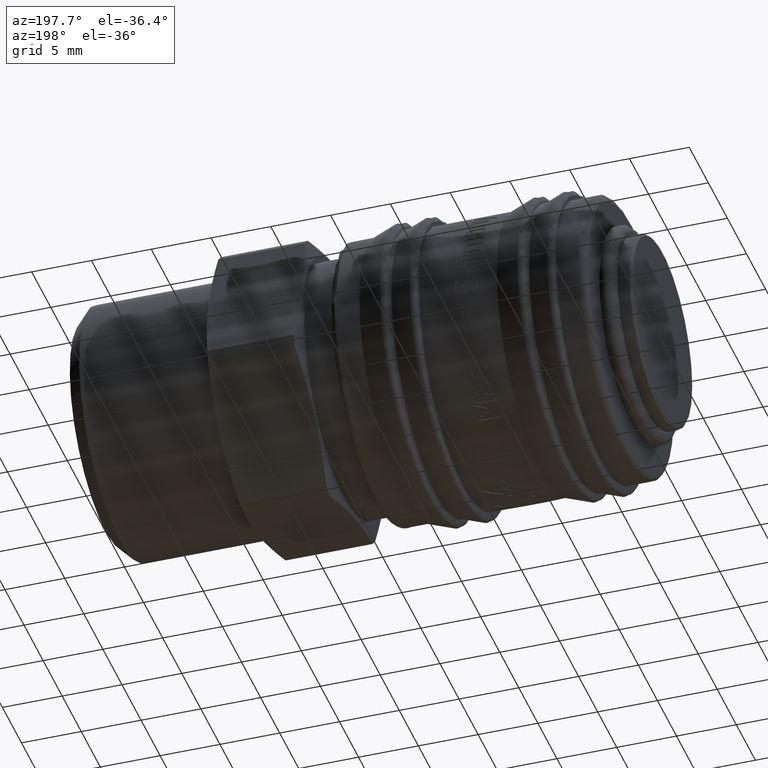
[diagram: clean part render]
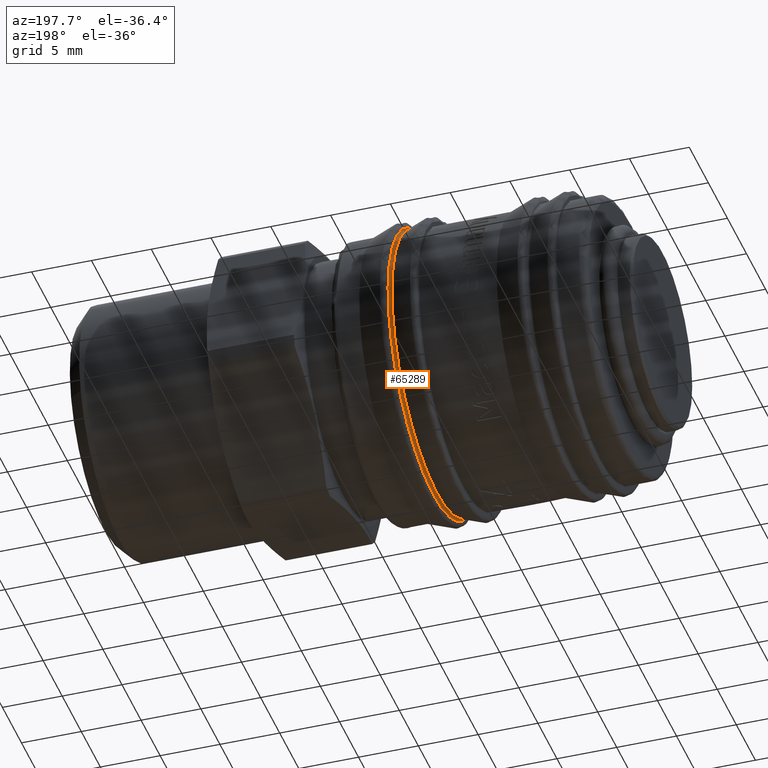
[diagram: same view with one face highlighted and labeled with its STEP entity id]
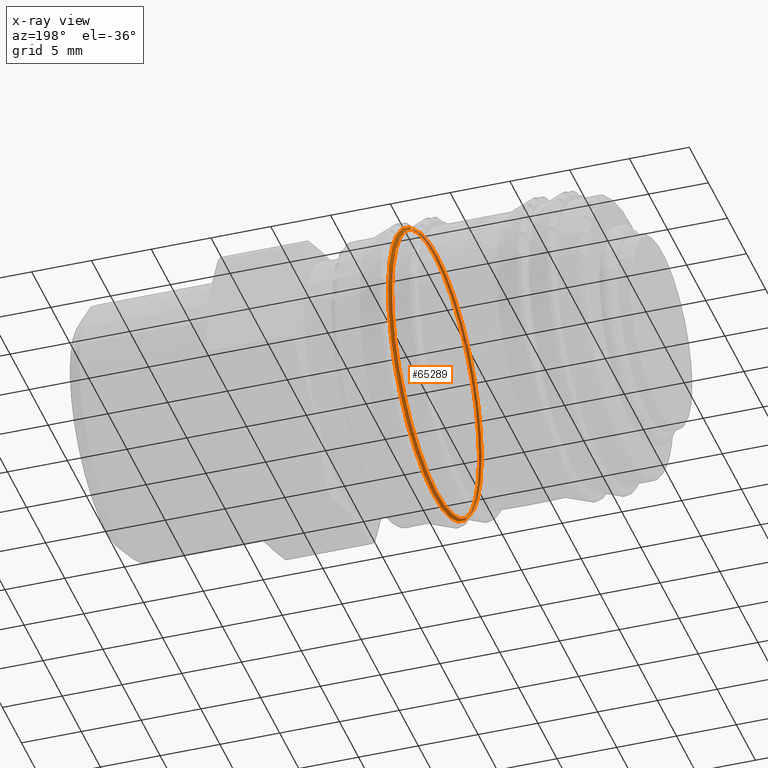
[diagram: x-ray of the same camera — body ghosted, the highlighted face saturated]
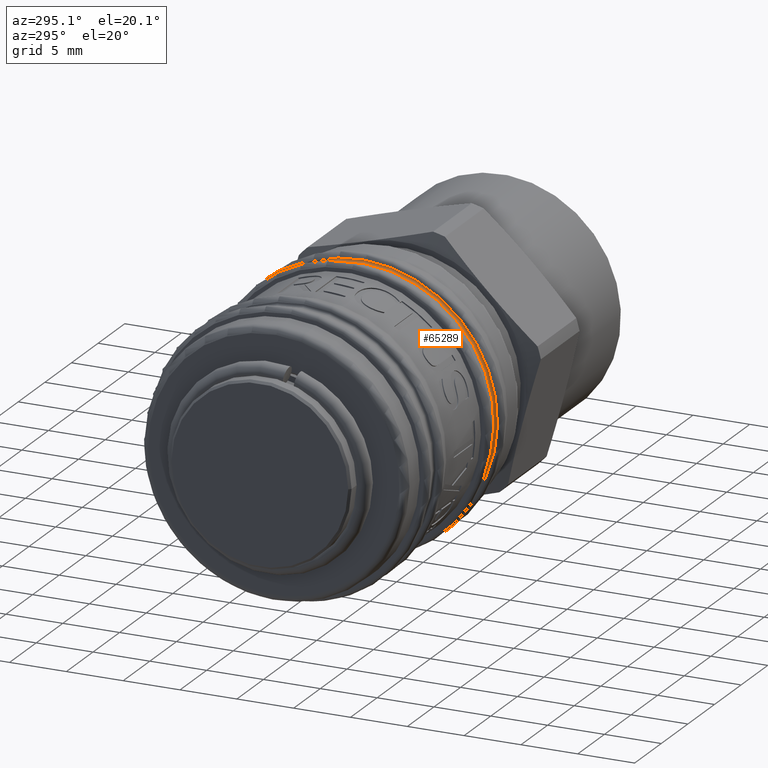
[diagram: same view with one face highlighted and labeled with its STEP entity id]
A machine part, auxiliary view. The second image highlights one B-rep face of the part: STEP entity #65289.
The next image is the same camera in x-ray: the body ghosted, the highlighted face saturated — about 38% of this face is hidden behind the body in this view.
A second angle (auxiliary view) of the same face is appended — the face is thin or edge-on in the first view.
In plain terms, the highlighted toroidal blend (fillet) surface has major radius 11.9369 mm and minor (blend) radius 0.2 mm.
Its self-contained STEP definition (entity closure, byte-faithful):
#65258=CARTESIAN_POINT('',(19.149999999999984,-2.59934504107831,11.65045341182028));
#65259=VERTEX_POINT('',#65258);
#65260=CARTESIAN_POINT('',(19.149999999999984,2.638175E-014,6.798347E-015));
#65261=DIRECTION('',(-1.0,1.011028E-017,-4.531501E-017));
#65262=DIRECTION('',(-4.642917E-017,-0.217757066914948,0.97600300194651));
#65263=AXIS2_PLACEMENT_3D('',#65260,#65261,#65262);
#65264=CIRCLE('',#65263,11.936903256019677);
#65265=EDGE_CURVE('',#65259,#65259,#65264,.T.);
#65270=CARTESIAN_POINT('',(18.949999999999985,2.636950E-014,6.786100E-015));
#65271=DIRECTION('',(-1.0,-6.123234E-017,-6.123234E-017));
#65272=DIRECTION('',(-7.309672E-017,0.97600300194651,0.217757066914948));
#65273=AXIS2_PLACEMENT_3D('',#65270,#65271,#65272);
#65274=TOROIDAL_SURFACE('',#65273,11.936903256019677,0.2);
#65275=CARTESIAN_POINT('',(18.880612869685333,-2.558498652379696,11.467376928685557));
#65276=VERTEX_POINT('',#65275);
#65277=CARTESIAN_POINT('',(18.880612869685333,2.636525E-014,6.781852E-015));
#65278=DIRECTION('',(-1.0,1.011028E-017,-4.531501E-017));
#65279=DIRECTION('',(-4.642917E-017,-0.217757066914948,0.97600300194651));
#65280=AXIS2_PLACEMENT_3D('',#65277,#65278,#65279);
#65281=CIRCLE('',#65280,11.7493254690973);
#65282=EDGE_CURVE('',#65276,#65276,#65281,.T.);
#65283=ORIENTED_EDGE('',*,*,#65282,.F.);
#65284=EDGE_LOOP('',(#65283));
#65285=FACE_OUTER_BOUND('',#65284,.T.);
#65286=ORIENTED_EDGE('',*,*,#65265,.T.);
#65287=EDGE_LOOP('',(#65286));
#65288=FACE_BOUND('',#65287,.T.);
#65289=ADVANCED_FACE('',(#65285,#65288),#65274,.F.);